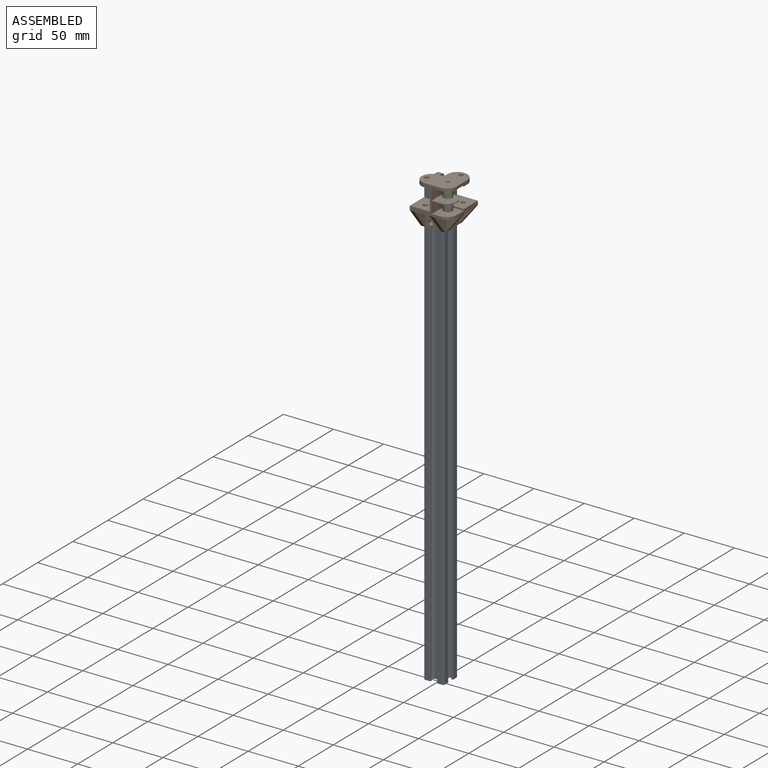
[diagram: assembled view]
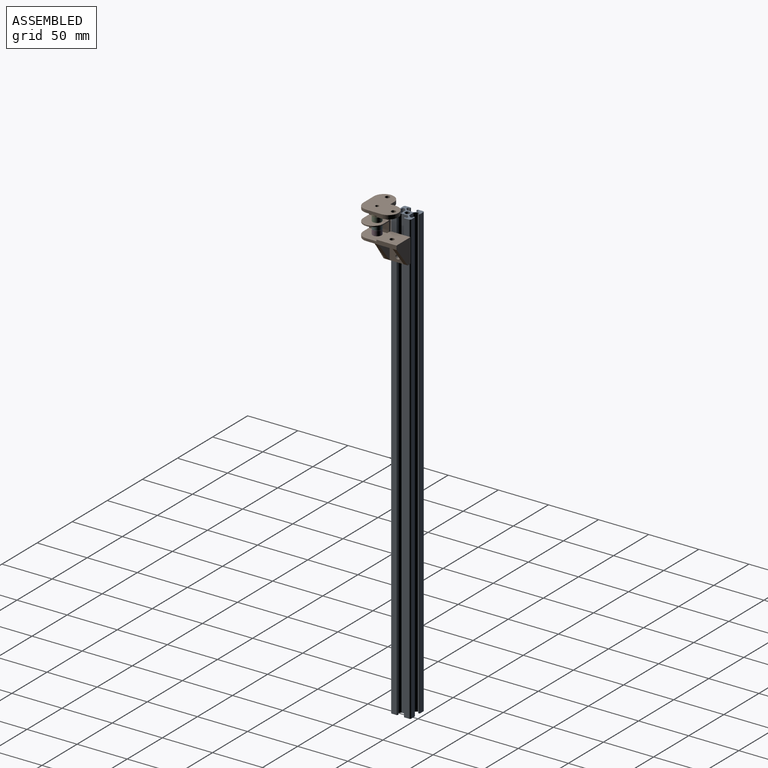
[diagram: assembled view, second angle]
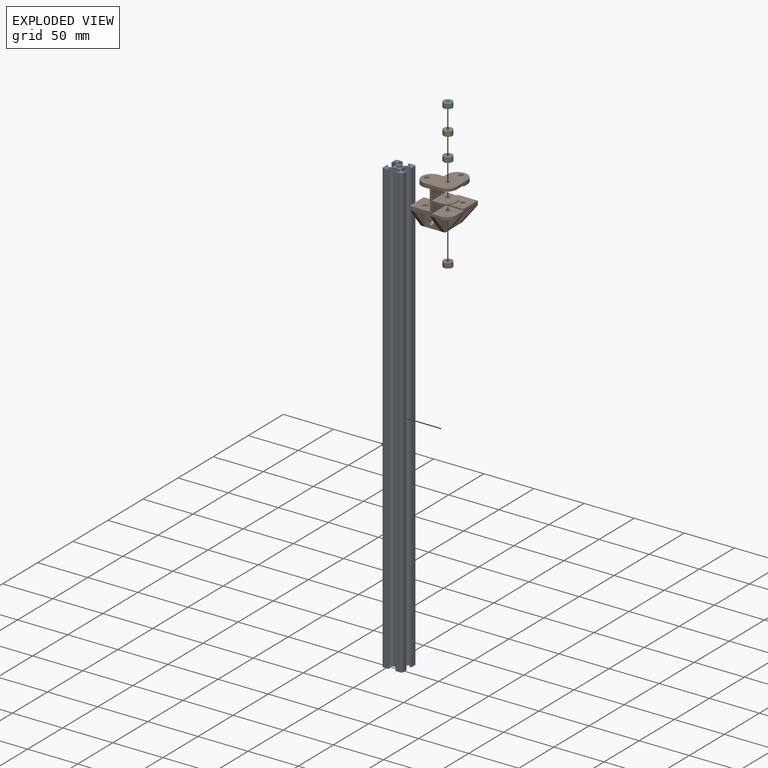
[diagram: exploded view]
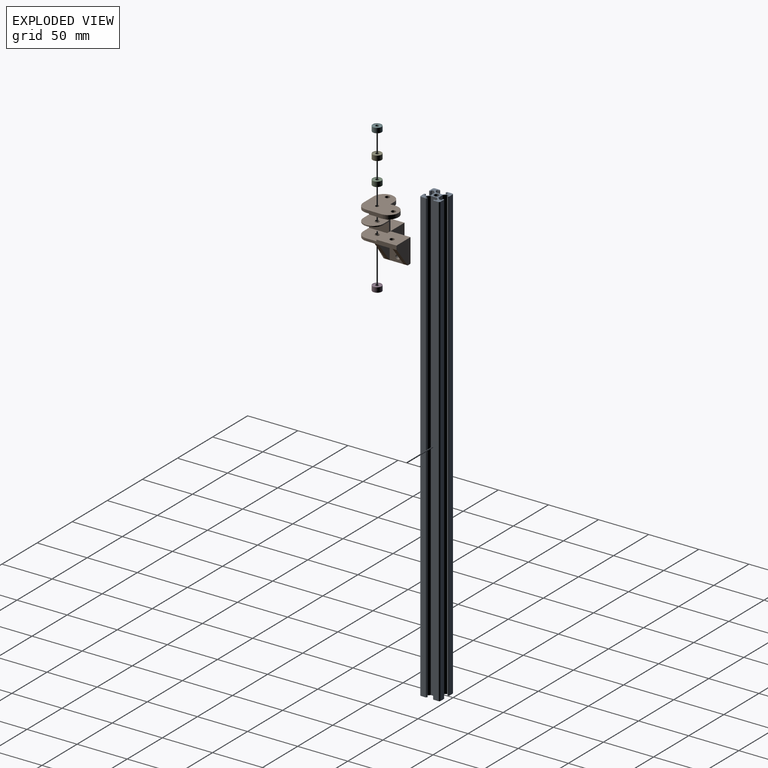
[diagram: exploded view, second angle]
ASSEMBLY  parts=6 mates=4
PART A: 59 faces, bbox 20x20x450 mm
  f0: cylinder r=0.5mm len=450mm, axis (0,0,-1), area 353.4mm2, adj f1,f56,f57,f58
  f1: plane 450x4.9mm, normal (0,-1,0), area 2205mm2, adj f0,f2,f57,f58
  f2: cylinder r=1.5mm len=450mm, axis (0,0,-1), area 1060.3mm2, adj f1,f3,f57,f58
  f3: plane 450x4.9mm, normal (1,0,0), area 2205mm2, adj f2,f4,f57,f58
  f4: cylinder r=0.5mm len=450mm, axis (0,0,-1), area 353.4mm2, adj f3,f5,f57,f58
  f5: plane 450x1mm, normal (0,1,0), area 450mm2, adj f4,f6,f57,f58
  f6: plane 450x2.4mm, normal (-1,0,0), area 1080mm2, adj f5,f7,f57,f58
  f7: plane 450x2mm, normal (0,1,0), area 900mm2, adj f6,f8,f57,f58
  f8: plane 450x2.6mm, normal (0.68,0.73,0), area 1592.3mm2, adj f7,f9,f57,f58
  f9: plane 450x6.2mm, normal (1,0,0), area 2790mm2, adj f8,f10,f57,f58
  f10: plane 450x2.6mm, normal (0.68,-0.73,0), area 1592.3mm2, adj f9,f11,f57,f58
  f11: plane 450x2mm, normal (0,-1,0), area 900mm2, adj f10,f12,f57,f58
  f12: plane 450x2.4mm, normal (-1,0,0), area 1080mm2, adj f11,f13,f57,f58
  f13: plane 450x1mm, normal (0,-1,0), area 450mm2, adj f12,f14,f57,f58
  f14: cylinder r=0.5mm len=450mm, axis (0,0,-1), area 353.4mm2, adj f13,f15,f57,f58
  f15: plane 450x4.9mm, normal (1,0,0), area 2205mm2, adj f14,f16,f57,f58
  f16: cylinder r=1.5mm len=450mm, axis (0,0,-1), area 1060.3mm2, adj f15,f17,f57,f58
  f17: plane 450x4.9mm, normal (0,1,0), area 2205mm2, adj f16,f18,f57,f58
  f18: cylinder r=0.5mm len=450mm, axis (0,0,-1), area 448.4mm2, adj f17,f19,f57,f58
  f19: plane 450x1mm, normal (-1,0,0), area 450mm2, adj f18,f20,f57,f58
  f20: plane 450x2.4mm, normal (0,-1,0), area 1080mm2, adj f19,f21,f57,f58
  f21: plane 450x2mm, normal (-1,0,0), area 900mm2, adj f20,f22,f57,f58
  f22: plane 450x2.43mm, normal (-0.71,0.7,0), area 1535.5mm2, adj f21,f23,f57,f58
  f23: plane 450x6.2mm, normal (0,1,0), area 2790mm2, adj f22,f24,f57,f58
  f24: plane 450x2.43mm, normal (0.71,0.7,0), area 1535.5mm2, adj f23,f25,f57,f58
  f25: plane 450x2mm, normal (1,0,0), area 900mm2, adj f24,f26,f57,f58
  f26: plane 450x2.4mm, normal (0,-1,0), area 1080mm2, adj f25,f27,f57,f58
  f27: plane 450x1mm, normal (1,0,0), area 450mm2, adj f26,f28,f57,f58
  f28: cylinder r=0.5mm len=450mm, axis (0,0,-1), area 448.4mm2, adj f27,f29,f57,f58
  f29: plane 450x4.9mm, normal (0,1,0), area 2205mm2, adj f28,f30,f57,f58
  f30: cylinder r=1.5mm len=450mm, axis (0,0,-1), area 1060.3mm2, adj f29,f31,f57,f58
  f31: plane 450x4.9mm, normal (-1,0,0), area 2205mm2, adj f30,f32,f57,f58
  f32: cylinder r=0.5mm len=450mm, axis (0,0,-1), area 353.4mm2, adj f31,f33,f57,f58
  f33: plane 450x1mm, normal (0,-1,0), area 450mm2, adj f32,f34,f57,f58
  f34: plane 450x2.4mm, normal (1,0,0), area 1080mm2, adj f33,f35,f57,f58
  f35: plane 450x2mm, normal (0,-1,0), area 900mm2, adj f34,f36,f57,f58
  f36: plane 450x2.6mm, normal (-0.68,-0.73,0), area 1592.3mm2, adj f35,f37,f57,f58
  f37: plane 450x6.2mm, normal (-1,0,0), area 2790mm2, adj f36,f38,f57,f58
  f38: plane 450x2.6mm, normal (-0.68,0.73,0), area 1592.3mm2, adj f37,f39,f57,f58
  f39: plane 450x2mm, normal (0,1,0), area 900mm2, adj f38,f40,f57,f58
  f40: plane 450x2.4mm, normal (1,0,0), area 1080mm2, adj f39,f41,f57,f58
  f41: plane 450x1mm, normal (0,1,0), area 450mm2, adj f40,f42,f57,f58
  f42: cylinder r=0.5mm len=450mm, axis (0,0,-1), area 353.4mm2, adj f41,f43,f57,f58
  f43: plane 450x4.9mm, normal (-1,0,0), area 2205mm2, adj f42,f44,f57,f58
  f44: cylinder r=1.5mm len=450mm, axis (0,0,-1), area 1060.3mm2, adj f43,f45,f57,f58
  f45: plane 450x4.9mm, normal (0,-1,0), area 2205mm2, adj f44,f46,f57,f58
  f46: cylinder r=0.5mm len=450mm, axis (0,0,-1), area 353.4mm2, adj f45,f47,f57,f58
  f47: plane 450x1mm, normal (1,0,0), area 450mm2, adj f46,f48,f57,f58
  f48: plane 450x2.4mm, normal (0,1,0), area 1080mm2, adj f47,f49,f57,f58
  f49: plane 450x2mm, normal (1,0,0), area 900mm2, adj f48,f50,f57,f58
  f50: plane 450x2.6mm, normal (0.73,-0.68,0), area 1592.3mm2, adj f49,f51,f57,f58
  f51: plane 450x6.2mm, normal (0,-1,0), area 2790mm2, adj f50,f52,f57,f58
  f52: plane 450x2.6mm, normal (-0.73,-0.68,0), area 1592.3mm2, adj f51,f53,f57,f58
  f53: plane 450x2mm, normal (-1,0,0), area 900mm2, adj f52,f54,f57,f58
  f54: plane 450x2.4mm, normal (0,1,0), area 1080mm2, adj f53,f56,f57,f58
  f55: cylinder r=2.5mm len=450mm, axis (0,0,-1), area 7068.6mm2, adj f57,f58
  f56: plane 450x1mm, normal (-1,0,0), area 450mm2, adj f0,f54,f57,f58
  f57: plane 20x20mm, normal (0,0,1), area 162.4mm2, adj f0,f1,f2,f3,f4,f5,f6,f7
  f58: plane 20x20mm, normal (0,0,-1), area 162.4mm2, adj f0,f1,f2,f3,f4,f5,f6,f7
PART B: 67 faces, bbox 40x40x48.3 mm
  f0: plane 40x40mm, normal (0,0,-1), area 689mm2, adj f1,f2,f8,f11,f12,f15,f16,f17
  f1: plane 20x14mm, normal (1,0,0), area 264.1mm2, adj f0,f20,f51,f62,f64
  f2: plane 20x17.91mm, normal (1,0,0), area 199.1mm2, adj f0,f20,f22,f61
  f3: plane 20.4x10mm, normal (0,1,0), area 48.8mm2, adj f5,f7,f10,f28,f30,f31,f56,f60
  f4: plane 5x3.9mm, normal (-1,0,0), area 19.5mm2, adj f25,f54,f60,f66
  f5: plane 20.4x20mm, normal (-1,0,0), area 408mm2, adj f3,f16,f19,f49
  f6: cylinder r=1.75mm len=3.5mm, axis (0,0,1), area 16.5mm2, adj f39,f48
  f7: plane 20x11mm, normal (1,0,0), area 220mm2, adj f3,f16,f26,f31,f59
  f8: plane 30x4mm, normal (1,0,0), area 105mm2, adj f0,f10,f12,f27,f29,f58
  f9: plane 15x3.9mm, normal (1,0,0), area 47.5mm2, adj f26,f54,f57,f59,f60,f66
  f10: plane 20x20mm, normal (0,0,1), area 384.1mm2, adj f3,f8,f12,f13,f18,f29
  f11: plane 20x16mm, normal (0,-1,0), area 304.1mm2, adj f0,f20,f21,f23,f52
  f12: plane 24x20mm, normal (0,1,0), area 319.1mm2, adj f0,f8,f10,f13,f20,f65
  f13: plane 24x20mm, normal (-1,0,0), area 464.1mm2, adj f10,f12,f14,f20,f51
  f14: plane 24x20mm, normal (0,1,0), area 464.1mm2, adj f13,f15,f19,f20,f52
  f15: plane 24x20mm, normal (-1,0,0), area 319.1mm2, adj f0,f14,f16,f19,f20,f24
  f16: plane 30x28.3mm, normal (0,-1,0), area 206.5mm2, adj f0,f5,f7,f15,f19,f26,f27,f28
  f17: cylinder r=2.25mm len=4.5mm, axis (0,0,-1), area 56.5mm2, adj f0,f19
  f18: cylinder r=2.25mm len=4.5mm, axis (0,0,-1), area 56.5mm2, adj f0,f10
  f19: plane 20x20mm, normal (0,0,1), area 384.1mm2, adj f5,f14,f15,f16,f17
  f20: plane 24x24mm, normal (0,0,-1), area 176mm2, adj f1,f2,f11,f12,f13,f14,f15,f22
  f21: plane 20x15.91mm, normal (-1,0,0), area 159.1mm2, adj f0,f11,f22
  f22: plane 20x15.91mm, normal (0,-0.78,-0.62), area 102.2mm2, adj f0,f2,f20,f21
  f23: plane 20x15.91mm, normal (1,0,0), area 159.1mm2, adj f0,f11,f24
  f24: plane 20x15.91mm, normal (0,-0.78,-0.62), area 102.2mm2, adj f0,f15,f20,f23
  f25: plane 5x3.9mm, normal (0,1,0), area 19.5mm2, adj f4,f49,f55,f66
  f26: plane 20x18mm, normal (0,0,-1), area 322.6mm2, adj f7,f9,f16,f40,f57,f59
  f27: plane 20x18mm, normal (0,0,1), area 322.6mm2, adj f8,f16,f28,f29,f47,f58
  f28: plane 20x11mm, normal (1,0,0), area 220mm2, adj f3,f16,f27,f29,f30
  f29: plane 18x1.5mm, normal (0,-1,0), area 27mm2, adj f8,f10,f27,f28
  f30: plane 20x18mm, normal (0,0,-1), area 301.2mm2, adj f3,f16,f28,f44,f56
  f31: plane 20x18mm, normal (0,0,1), area 301.2mm2, adj f3,f7,f16,f43,f56
  f32: cylinder r=1.75mm len=3.5mm, axis (0,0,1), area 36.3mm2, adj f41,f66
  f33: plane 3.23x1.5mm, normal (-0.01,1,0), area 4.8mm2, adj f0,f34,f38,f39
  f34: plane 2.78x1.64mm, normal (0.86,0.51,0), area 4.8mm2, adj f0,f33,f35,f39
  f35: plane 2.82x1.59mm, normal (0.87,-0.49,0), area 4.8mm2, adj f0,f34,f36,f39
  f36: plane 3.23x1.5mm, normal (0.01,-1,0), area 4.8mm2, adj f0,f35,f37,f39
  f37: plane 2.78x1.64mm, normal (-0.86,-0.51,0), area 4.8mm2, adj f0,f36,f38,f39
  f38: plane 2.82x1.59mm, normal (-0.87,0.49,0), area 4.8mm2, adj f0,f33,f37,f39
  f39: plane 6.47x5.63mm, normal (0,0,-1), area 17.5mm2, adj f6,f33,f34,f35,f36,f37,f38
  f40: cylinder r=2.25mm len=4.5mm, axis (0,0,1), area 7.1mm2, adj f26,f41
  f41: plane 4.5x4.5mm, normal (0,0,-1), area 6.3mm2, adj f32,f40
  f42: plane 4.5x4.5mm, normal (0,0,1), area 6.3mm2, adj f43,f46
  f43: cylinder r=2.25mm len=4.5mm, axis (0,0,1), area 7.1mm2, adj f31,f42
  f44: cylinder r=2.25mm len=4.5mm, axis (0,0,1), area 7.1mm2, adj f30,f45
  f45: plane 4.5x4.5mm, normal (0,0,-1), area 6.3mm2, adj f44,f46
  f46: cylinder r=1.75mm len=3.5mm, axis (0,0,1), area 22mm2, adj f42,f45
  f47: cylinder r=2.25mm len=4.5mm, axis (0,0,1), area 7.1mm2, adj f27,f48
  f48: plane 4.5x4.5mm, normal (0,0,1), area 6.3mm2, adj f6,f47
  f49: plane 20x15mm, normal (0,0,-1), area 241.2mm2, adj f5,f16,f25,f50,f55
  f50: cylinder r=2.25mm len=4.5mm, axis (0,0,1), area 55.1mm2, adj f49,f66
  f51: cylinder r=2.25mm len=4.5mm, axis (1,0,0), area 56.5mm2, adj f1,f13
  f52: cylinder r=2.25mm len=4.5mm, axis (0,-1,0), area 56.5mm2, adj f11,f14
  f53: cylinder r=2.25mm len=4.5mm, axis (0,0,1), area 55.1mm2, adj f60,f66
  f54: cylinder r=10mm len=20mm, axis (0,0,-1), area 122.5mm2, adj f4,f9,f60,f66
  f55: cylinder r=10mm len=20mm, axis (0,0,-1), area 122.5mm2, adj f16,f25,f49,f66
  f56: cylinder r=10mm len=20mm, axis (0,0,1), area 31.4mm2, adj f3,f16,f30,f31
  f57: cylinder r=10mm len=10mm, axis (0,0,1), area 44mm2, adj f9,f16,f26,f66
  f58: cylinder r=10mm len=10mm, axis (0,0,1), area 39.3mm2, adj f0,f8,f16,f27
  f59: plane 18x1.1mm, normal (0,-1,0), area 19.8mm2, adj f7,f9,f26,f60
  f60: plane 20x15mm, normal (0,0,-1), area 241.2mm2, adj f3,f4,f9,f53,f54,f59
  f61: plane 20x15.91mm, normal (0,-1,0), area 159.1mm2, adj f0,f2,f63
  f62: plane 20x15.91mm, normal (0,1,0), area 159.1mm2, adj f0,f1,f63
  f63: plane 20x15.91mm, normal (0.78,0,-0.62), area 102.2mm2, adj f0,f20,f61,f62
  f64: plane 20x15.91mm, normal (0,-1,0), area 159.1mm2, adj f0,f1,f65
  f65: plane 20x15.91mm, normal (0.78,0,-0.62), area 102.2mm2, adj f0,f12,f20,f64
  f66: plane 35x35mm, normal (0,0,1), area 851.3mm2, adj f4,f9,f16,f25,f32,f50,f53,f54
PART C: 20 faces, bbox 9.7x9.7x5 mm
  f0: cylinder r=4mm len=8mm, axis (0,0,-1), area 3.8mm2, adj f11,f12
  f1: cylinder r=4mm len=8mm, axis (0,0,-1), area 3.8mm2, adj f10,f14
  f2: cylinder r=4.5mm len=9mm, axis (0,0,-1), area 135.7mm2, adj f13,f15
  f3: plane 8.8x8.8mm, normal (0,0,1), area 8mm2, adj f14,f15
  f4: plane 8.8x8.8mm, normal (0,0,-1), area 8mm2, adj f12,f13
  f5: cylinder r=1.75mm len=3.5mm, axis (0,0,-1), area 1.6mm2, adj f11,f16
  f6: cylinder r=1.5mm len=4.8mm, axis (0,0,-1), area 45.2mm2, adj f17,f19
  f7: cylinder r=1.75mm len=3.5mm, axis (0,0,-1), area 1.6mm2, adj f10,f18
  f8: plane 3.3x3.3mm, normal (0,0,1), area 0.5mm2, adj f18,f19
  f9: plane 3.3x3.3mm, normal (0,0,-1), area 0.5mm2, adj f16,f17
  f10: plane 8x8mm, normal (0,0,1), area 40.6mm2, adj f1,f7
  f11: plane 8x8mm, normal (0,0,-1), area 40.6mm2, adj f0,f5
  f12: torus R=4.1mm, axis (0,0,1), area 4mm2, adj f0,f4
  f13: torus R=4.4mm, axis (0,0,1), area 4.4mm2, adj f2,f4
  f14: torus R=4.1mm, axis (0,0,1), area 4mm2, adj f1,f3
  f15: torus R=4.4mm, axis (0,0,1), area 4.4mm2, adj f2,f3
  f16: torus R=1.65mm, axis (0,0,1), area 1.7mm2, adj f5,f9
  f17: torus R=1.6mm, axis (0,0,1), area 1.5mm2, adj f6,f9
  f18: torus R=1.65mm, axis (0,0,1), area 1.7mm2, adj f7,f8
  f19: torus R=1.6mm, axis (0,0,1), area 1.5mm2, adj f6,f8
PART D: same geometry as C
PART E: same geometry as C
PART F: same geometry as C
PLACE A rot(axis=(0,0,-1),90deg) t=(-82.03,19.75,-244.55)mm
PLACE B t=(74.39,-71.29,186.05)mm
PLACE C t=(91.25,-64.05,201.05)mm
PLACE D t=(91.25,-64.05,189.05)mm
PLACE E t=(91.25,-64.05,206.05)mm
PLACE F t=(91.25,-64.05,194.05)mm
MATE fastened D.f0 <-> B.f6  axis (0,0,-1) through (25.36,-22.97,189.05)mm
MATE fastened C.f0 <-> B.f6  axis (0,0,-1) through (25.36,-22.97,201.05)mm
MATE fastened E.f0 <-> B.f6  axis (0,0,1) through (25.36,-22.97,211.05)mm
MATE fastened F.f0 <-> B.f6  axis (0,0,1) through (25.36,-22.97,199.05)mm
